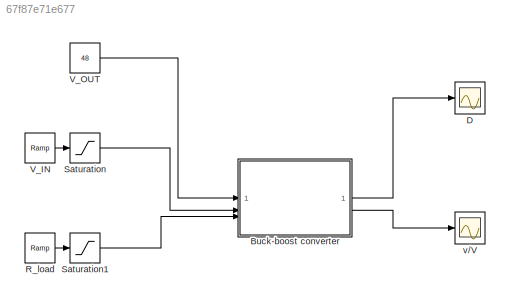
MODEL slx_67f87e71e677
KIND model
CONFIG AbsTol = auto
CONFIG EnableMultiTasking = off
CONFIG FixedStep = auto
CONFIG MaxStep = auto
CONFIG MinStep = auto
CONFIG RelTol = 1e-3
CONFIG SampleTimeConstraint = Unconstrained
CONFIG SolverName = VariableStepAuto
CONFIG StartTime = 0.0
CONFIG StopTime = 20
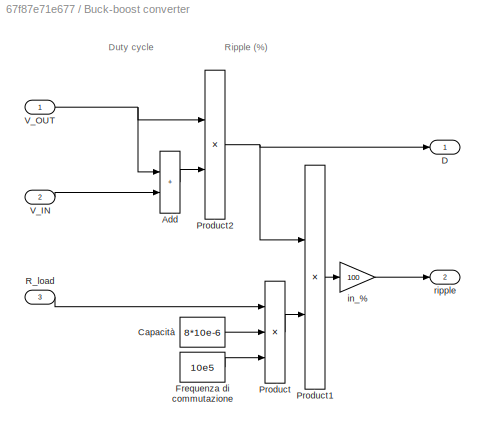
BLOCK [SubSystem] Buck-boost converter
BLOCK [Sum] Buck-boost converter/Add
  IconShape = rectangular
BLOCK [Constant] Buck-boost converter/Capacità
  NameLocation = left
  Value = 8*10e-6
BLOCK [Outport] Buck-boost converter/D
  NameLocation = right
  Unit = 1
BLOCK [Constant] Buck-boost converter/Frequenza di commutazione
  NameLocation = left
  Value = 10e5
BLOCK [Product] Buck-boost converter/Product
  Inputs = 3
BLOCK [Product] Buck-boost converter/Product1
  Inputs = */
BLOCK [Product] Buck-boost converter/Product2
  Inputs = */
BLOCK [Inport] Buck-boost converter/R_load
  NameLocation = left
  Port = 3
  Unit = Ω
BLOCK [Inport] Buck-boost converter/V_IN
  NameLocation = left
  Port = 2
  Unit = V
BLOCK [Inport] Buck-boost converter/V_OUT
  NameLocation = left
  Unit = V
BLOCK [Gain] Buck-boost converter/in_%
  Gain = 100
BLOCK [Outport] Buck-boost converter/ripple
  NameLocation = right
  Port = 2
  Unit = %
BLOCK [Scope] D
  Floating = off
  NameLocation = right
  NumInputPorts = 1
  ScopeSpecificationString = Simulink.scopes.TimeScopeBlockCfg('CurrentConfiguration', extmgr.ConfigurationSet(extmgr.Configuration('Core','General UI',true),extmgr.Configuration('Core','Source UI',true),extmgr.Configuration('Sources','WiredSimulink',true),extmgr.Configuration('Visuals','Time Domain',true,'SerializedDisplays',{struct('MinYLimReal','0.2039','MaxYLimReal','0.71809','YLabelReal','','MinYLimMag','0.2039','MaxYLim...<+1464ch>
BLOCK [Reference] R_load  REF=simulink/Sources/Ramp
  NameLocation = left
  SourceBlock = simulink/Sources/Ramp
  SourceType = Ramp
BLOCK [Saturate] Saturation
  LowerLimit = 24
  UpperLimit = 160
BLOCK [Saturate] Saturation1
  LowerLimit = 1
  UpperLimit = 5
BLOCK [Reference] V_IN  REF=simulink/Sources/Ramp
  NameLocation = left
  SourceBlock = simulink/Sources/Ramp
  SourceType = Ramp
BLOCK [Constant] V_OUT
  NameLocation = left
  Value = 48
BLOCK [Scope] v//V
  Floating = off
  NumInputPorts = 1
  ScopeSpecificationString = Simulink.scopes.TimeScopeBlockCfg('CurrentConfiguration', extmgr.ConfigurationSet(extmgr.Configuration('Core','General UI',true),extmgr.Configuration('Core','Source UI',true),extmgr.Configuration('Sources','WiredSimulink',true,'DataLoggingVariableName','ScopeData1'),extmgr.Configuration('Visuals','Time Domain',true,'SerializedDisplays',{struct('MinYLimReal','-0.03236','MaxYLimReal','0.92952','YLab...<+1480ch>
ANNOTATION Buck-boost converter: Duty cycle
ANNOTATION Buck-boost converter: Ripple (%)
LINE Buck-boost converter/Add:1 -> Buck-boost converter/Product2:2
LINE Buck-boost converter/Capacità:1 -> Buck-boost converter/Product:2
LINE Buck-boost converter/Frequenza di commutazione:1 -> Buck-boost converter/Product:3
LINE Buck-boost converter/Product1:1 -> Buck-boost converter/in_%:1
NET Buck-boost converter/Product2:1 -> Buck-boost converter/D:1, Buck-boost converter/Product1:1
LINE Buck-boost converter/Product:1 -> Buck-boost converter/Product1:2
LINE Buck-boost converter/R_load:1 -> Buck-boost converter/Product:1
LINE Buck-boost converter/V_IN:1 -> Buck-boost converter/Add:2
NET Buck-boost converter/V_OUT:1 -> Buck-boost converter/Add:1, Buck-boost converter/Product2:1
LINE Buck-boost converter/in_%:1 -> Buck-boost converter/ripple:1
LINE Buck-boost converter:1 -> D:1
LINE Buck-boost converter:2 -> v//V:1
LINE R_load:1 -> Saturation1:1
LINE Saturation1:1 -> Buck-boost converter:3
LINE Saturation:1 -> Buck-boost converter:2
LINE V_IN:1 -> Saturation:1
LINE V_OUT:1 -> Buck-boost converter:1
note: NET lines group one-source signal fan-out (src -> all destinations, sorted); 1:1 wires keep LINE
